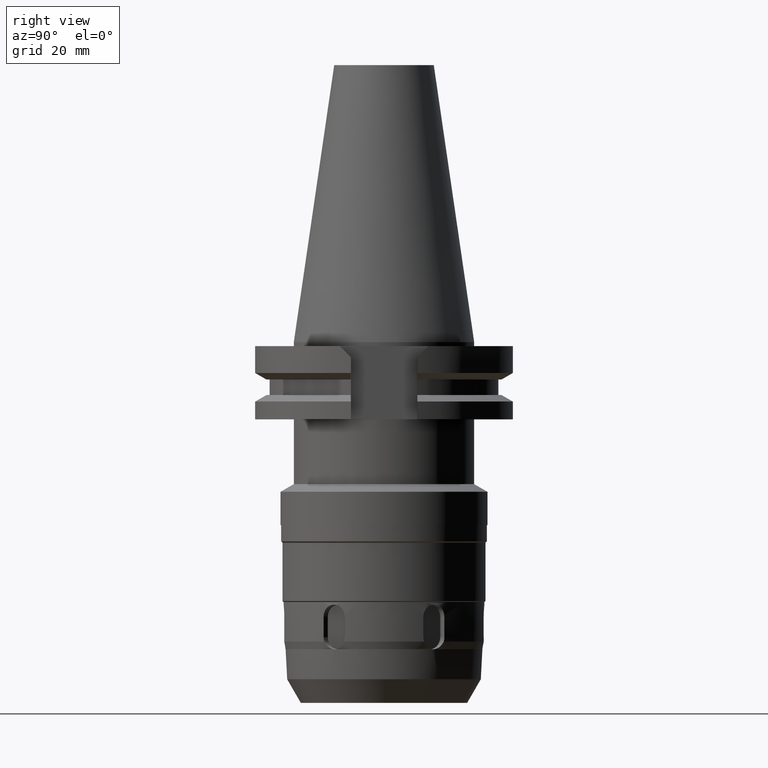
[diagram: clean part render]
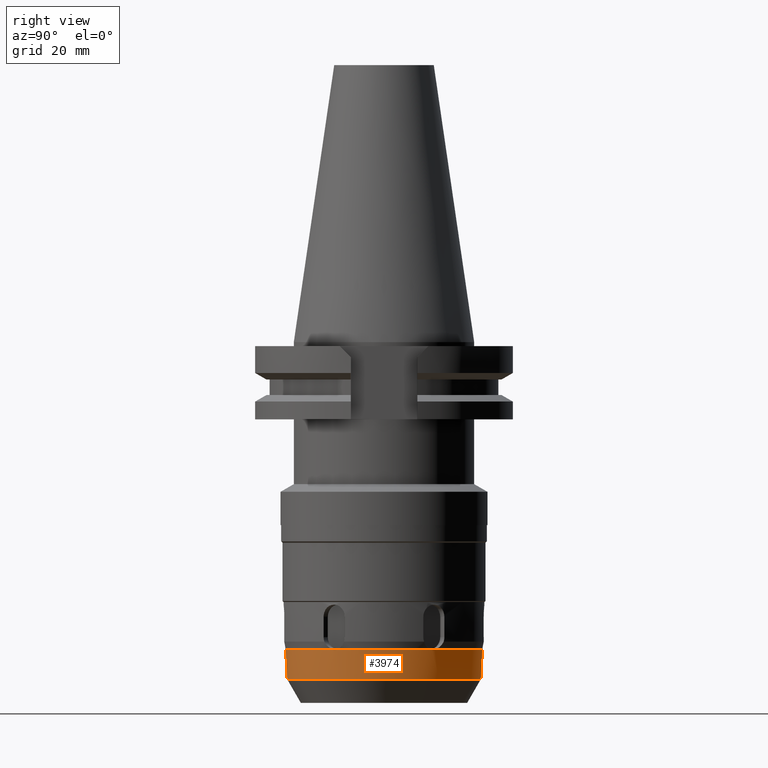
[diagram: same view with one face highlighted and labeled with its STEP entity id]
A machine part, right view. The second image highlights one B-rep face of the part: STEP entity #3974.
In plain terms, the highlighted conical surface has half-angle 3 deg.
Its self-contained STEP definition (entity closure, byte-faithful):
#1358=CARTESIAN_POINT('',(-2.532394137984E-13,-2.424799802806E1,
-7.569999999643E1));
#1363=DIRECTION('',(0.E0,5.233597852943E-2,-9.986295335866E-1));
#1364=VECTOR('',#1363,7.388125180987E0);
#1365=CARTESIAN_POINT('',(-2.532394137984E-13,-2.424799802806E1,
-7.569999999643E1));
#1366=LINE('',#1365,#1364);
#1492=CARTESIAN_POINT('',(-2.532394137984E-13,-2.424799802806E1,
-7.569999999643E1));
#1493=CARTESIAN_POINT('',(4.943904011522E-2,-2.424799802806E1,
-7.569999999643E1));
#1494=CARTESIAN_POINT('',(1.483220932447E-1,-2.424782325782E1,
-7.569755531375E1));
#1495=CARTESIAN_POINT('',(2.963017926533E-1,-2.424704177339E1,
-7.568656057233E1));
#1496=CARTESIAN_POINT('',(3.944782478465E-1,-2.424618197970E1,
-7.567436248267E1));
#1497=CARTESIAN_POINT('',(4.433880216657E-1,-2.424567066252E1,
-7.566705354133E1));
#1502=CARTESIAN_POINT('',(0.E0,0.E0,-7.566705353144E1));
#1503=DIRECTION('',(0.E0,0.E0,1.E0));
#1504=DIRECTION('',(1.828422047719E-2,-9.998328296678E-1,0.E0));
#1505=AXIS2_PLACEMENT_3D('',#1502,#1503,#1504);
#1510=CARTESIAN_POINT('',(2.077567292423E1,-1.250682024932E1,
-7.566705357271E1));
#1511=CARTESIAN_POINT('',(2.080057047729E1,-1.246471904924E1,
-7.567436246032E1));
#1512=CARTESIAN_POINT('',(2.085040319291E1,-1.238012573050E1,
-7.568656058045E1));
#1513=CARTESIAN_POINT('',(2.092507019524E1,-1.225236243491E1,
-7.569755534759E1));
#1514=CARTESIAN_POINT('',(2.097466219927E1,-1.216681412812E1,
-7.569999992088E1));
#1515=CARTESIAN_POINT('',(2.099938170849E1,-1.212399868221E1,
-7.569999992088E1));
#1520=CARTESIAN_POINT('',(2.099938170849E1,-1.212399868221E1,
-7.569999992088E1));
#1521=CARTESIAN_POINT('',(2.102410121772E1,-1.208118323629E1,
-7.569999992088E1));
#1522=CARTESIAN_POINT('',(2.107339221760E1,-1.199546115891E1,
-7.569755535042E1));
#1523=CARTESIAN_POINT('',(2.114670499910E1,-1.186691593938E1,
-7.568656057056E1));
#1524=CARTESIAN_POINT('',(2.119504854817E1,-1.178146300683E1,
-7.567436248150E1));
#1525=CARTESIAN_POINT('',(2.121906060593E1,-1.173885027167E1,
-7.566705354719E1));
#1530=CARTESIAN_POINT('',(0.E0,0.E0,-7.566705353144E1));
#1531=DIRECTION('',(0.E0,0.E0,1.E0));
#1532=DIRECTION('',(8.750227267319E-1,-4.840818398812E-1,0.E0));
#1533=AXIS2_PLACEMENT_3D('',#1530,#1531,#1532);
#1538=CARTESIAN_POINT('',(2.121906051859E1,1.173885040844E1,-7.566705357271E1));
#1539=CARTESIAN_POINT('',(2.119504858632E1,1.178146292193E1,-7.567436246032E1));
#1540=CARTESIAN_POINT('',(2.114670498111E1,1.186691597897E1,-7.568656058045E1));
#1541=CARTESIAN_POINT('',(2.107339222262E1,1.199546114760E1,-7.569755534760E1));
#1542=CARTESIAN_POINT('',(2.102410121771E1,1.208118323631E1,-7.569999992088E1));
#1543=CARTESIAN_POINT('',(2.099938170849E1,1.212399868221E1,-7.569999992088E1));
#1548=CARTESIAN_POINT('',(2.099938170849E1,1.212399868221E1,-7.569999992088E1));
#1549=CARTESIAN_POINT('',(2.097466219926E1,1.216681412814E1,-7.569999992088E1));
#1550=CARTESIAN_POINT('',(2.092507020252E1,1.225236242491E1,-7.569755535042E1));
#1551=CARTESIAN_POINT('',(2.085040316763E1,1.238012576587E1,-7.568656057056E1));
#1552=CARTESIAN_POINT('',(2.080057053174E1,1.246471897375E1,-7.567436248149E1));
#1553=CARTESIAN_POINT('',(2.077567284946E1,1.250682039333E1,-7.566705354719E1));
#1558=CARTESIAN_POINT('',(0.E0,0.E0,-7.566705353144E1));
#1559=DIRECTION('',(0.E0,0.E0,1.E0));
#1560=DIRECTION('',(8.567385342138E-1,5.157509902979E-1,0.E0));
#1561=AXIS2_PLACEMENT_3D('',#1558,#1559,#1560);
#1566=CARTESIAN_POINT('',(4.433824325126E-1,2.424567038031E1,
-7.566705449966E1));
#1567=CARTESIAN_POINT('',(3.944822283637E-1,2.424618161943E1,
-7.567436168677E1));
#1568=CARTESIAN_POINT('',(2.962999417983E-1,2.424704194543E1,
-7.568656094313E1));
#1569=CARTESIAN_POINT('',(1.483226179632E-1,2.424782321373E1,
-7.569755520807E1));
#1570=CARTESIAN_POINT('',(4.943903761427E-2,2.424799802806E1,
-7.569999999643E1));
#1571=CARTESIAN_POINT('',(0.E0,2.424799802806E1,-7.569999999643E1));
#1576=DIRECTION('',(0.E0,-5.233597852943E-2,-9.986295335866E-1));
#1577=VECTOR('',#1576,7.388125180987E0);
#1578=CARTESIAN_POINT('',(0.E0,2.424799802806E1,-7.569999999643E1));
#1579=LINE('',#1578,#1577);
#1583=CARTESIAN_POINT('',(4.433880216657E-1,-2.424567066252E1,
-7.566705354133E1));
#1608=CARTESIAN_POINT('',(2.077567292423E1,-1.250682024932E1,
-7.566705357271E1));
#1888=CARTESIAN_POINT('',(2.077567284946E1,1.250682039333E1,-7.566705354719E1));
#1913=CARTESIAN_POINT('',(4.433824325126E-1,2.424567038031E1,
-7.566705449966E1));
#1932=CARTESIAN_POINT('',(2.121906060593E1,-1.173885027167E1,
-7.566705354719E1));
#1957=CARTESIAN_POINT('',(2.121906051859E1,1.173885040844E1,-7.566705357271E1));
#2149=CARTESIAN_POINT('',(0.E0,0.E0,-8.3078E1));
#2150=DIRECTION('',(0.E0,0.E0,1.E0));
#2151=DIRECTION('',(0.E0,-1.E0,0.E0));
#2152=AXIS2_PLACEMENT_3D('',#2149,#2150,#2151);
#2596=CARTESIAN_POINT('',(0.E0,2.386133326722E1,-8.3078E1));
#2597=VERTEX_POINT('',#2596);
#2598=CARTESIAN_POINT('',(-1.883619816816E-13,-2.386133326722E1,-8.3078E1));
#2599=VERTEX_POINT('',#2598);
#2609=VERTEX_POINT('',#1358);
#2610=CARTESIAN_POINT('',(0.E0,2.424799802806E1,-7.569999999643E1));
#2611=VERTEX_POINT('',#2610);
#2624=VERTEX_POINT('',#1888);
#2628=VERTEX_POINT('',#1913);
#2629=VERTEX_POINT('',#1932);
#2633=VERTEX_POINT('',#1957);
#2634=VERTEX_POINT('',#1583);
#2638=VERTEX_POINT('',#1608);
#2645=VERTEX_POINT('',#1548);
#2655=VERTEX_POINT('',#1520);
#3946=CARTESIAN_POINT('',(0.E0,0.E0,-7.937252676572E1));
#3947=DIRECTION('',(0.E0,0.E0,1.E0));
#3948=DIRECTION('',(0.E0,1.E0,0.E0));
#3949=AXIS2_PLACEMENT_3D('',#3946,#3947,#3948);
#3950=CONICAL_SURFACE('',#3949,2.405552889062E1,3.000000000001E0);
#3951=ORIENTED_EDGE('',*,*,#3926,.T.);
#3953=ORIENTED_EDGE('',*,*,#3952,.T.);
#3955=ORIENTED_EDGE('',*,*,#3954,.T.);
#3957=ORIENTED_EDGE('',*,*,#3956,.T.);
#3959=ORIENTED_EDGE('',*,*,#3958,.T.);
#3961=ORIENTED_EDGE('',*,*,#3960,.T.);
#3963=ORIENTED_EDGE('',*,*,#3962,.T.);
#3965=ORIENTED_EDGE('',*,*,#3964,.T.);
#3967=ORIENTED_EDGE('',*,*,#3966,.T.);
#3968=ORIENTED_EDGE('',*,*,#3864,.T.);
#3970=ORIENTED_EDGE('',*,*,#3969,.F.);
#3971=ORIENTED_EDGE('',*,*,#3860,.F.);
#3972=EDGE_LOOP('',(#3951,#3953,#3955,#3957,#3959,#3961,#3963,#3965,#3967,#3968,
#3970,#3971));
#3973=FACE_OUTER_BOUND('',#3972,.F.);
#1498=B_SPLINE_CURVE_WITH_KNOTS('',3,(#1492,#1493,#1494,#1495,#1496,#1497),
.UNSPECIFIED.,.F.,.F.,(4,1,1,4),(0.E0,3.333333333333E-1,6.666666666667E-1,1.E0),
.UNSPECIFIED.);
#1506=CIRCLE('',#1505,2.424972451402E1);
#1516=B_SPLINE_CURVE_WITH_KNOTS('',3,(#1510,#1511,#1512,#1513,#1514,#1515),
.UNSPECIFIED.,.F.,.F.,(4,1,1,4),(0.E0,3.333333333333E-1,6.666666666667E-1,1.E0),
.UNSPECIFIED.);
#1526=B_SPLINE_CURVE_WITH_KNOTS('',3,(#1520,#1521,#1522,#1523,#1524,#1525),
.UNSPECIFIED.,.F.,.F.,(4,1,1,4),(0.E0,3.333333333333E-1,6.666666666667E-1,1.E0),
.UNSPECIFIED.);
#1534=CIRCLE('',#1533,2.424972451402E1);
#1544=B_SPLINE_CURVE_WITH_KNOTS('',3,(#1538,#1539,#1540,#1541,#1542,#1543),
.UNSPECIFIED.,.F.,.F.,(4,1,1,4),(0.E0,3.333333333333E-1,6.666666666667E-1,1.E0),
.UNSPECIFIED.);
#1554=B_SPLINE_CURVE_WITH_KNOTS('',3,(#1548,#1549,#1550,#1551,#1552,#1553),
.UNSPECIFIED.,.F.,.F.,(4,1,1,4),(0.E0,3.333333333333E-1,6.666666666667E-1,1.E0),
.UNSPECIFIED.);
#1562=CIRCLE('',#1561,2.424972451402E1);
#1572=B_SPLINE_CURVE_WITH_KNOTS('',3,(#1566,#1567,#1568,#1569,#1570,#1571),
.UNSPECIFIED.,.F.,.F.,(4,1,1,4),(0.E0,3.333333333333E-1,6.666666666667E-1,1.E0),
.UNSPECIFIED.);
#2153=CIRCLE('',#2152,2.386133326722E1);
#3860=EDGE_CURVE('',#2609,#2599,#1366,.T.);
#3864=EDGE_CURVE('',#2611,#2597,#1579,.T.);
#3926=EDGE_CURVE('',#2609,#2634,#1498,.T.);
#3952=EDGE_CURVE('',#2634,#2638,#1506,.T.);
#3954=EDGE_CURVE('',#2638,#2655,#1516,.T.);
#3956=EDGE_CURVE('',#2655,#2629,#1526,.T.);
#3958=EDGE_CURVE('',#2629,#2633,#1534,.T.);
#3960=EDGE_CURVE('',#2633,#2645,#1544,.T.);
#3962=EDGE_CURVE('',#2645,#2624,#1554,.T.);
#3964=EDGE_CURVE('',#2624,#2628,#1562,.T.);
#3966=EDGE_CURVE('',#2628,#2611,#1572,.T.);
#3969=EDGE_CURVE('',#2599,#2597,#2153,.T.);
#3974=ADVANCED_FACE('',(#3973),#3950,.T.);